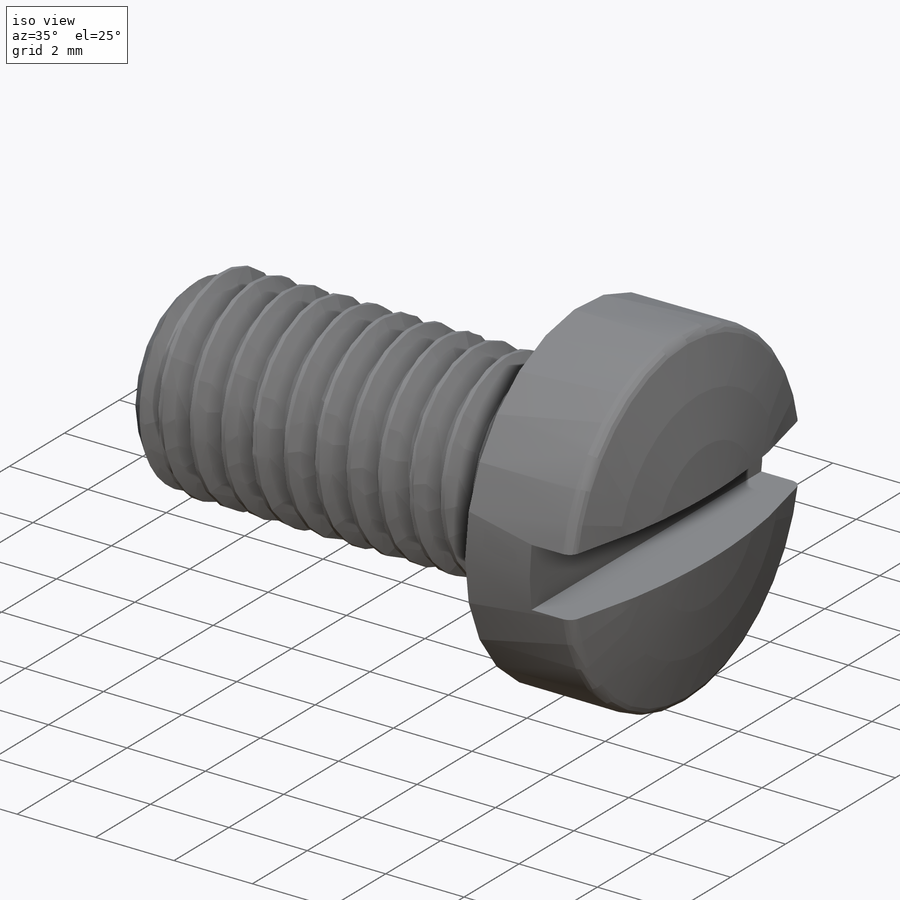
[diagram: iso view]
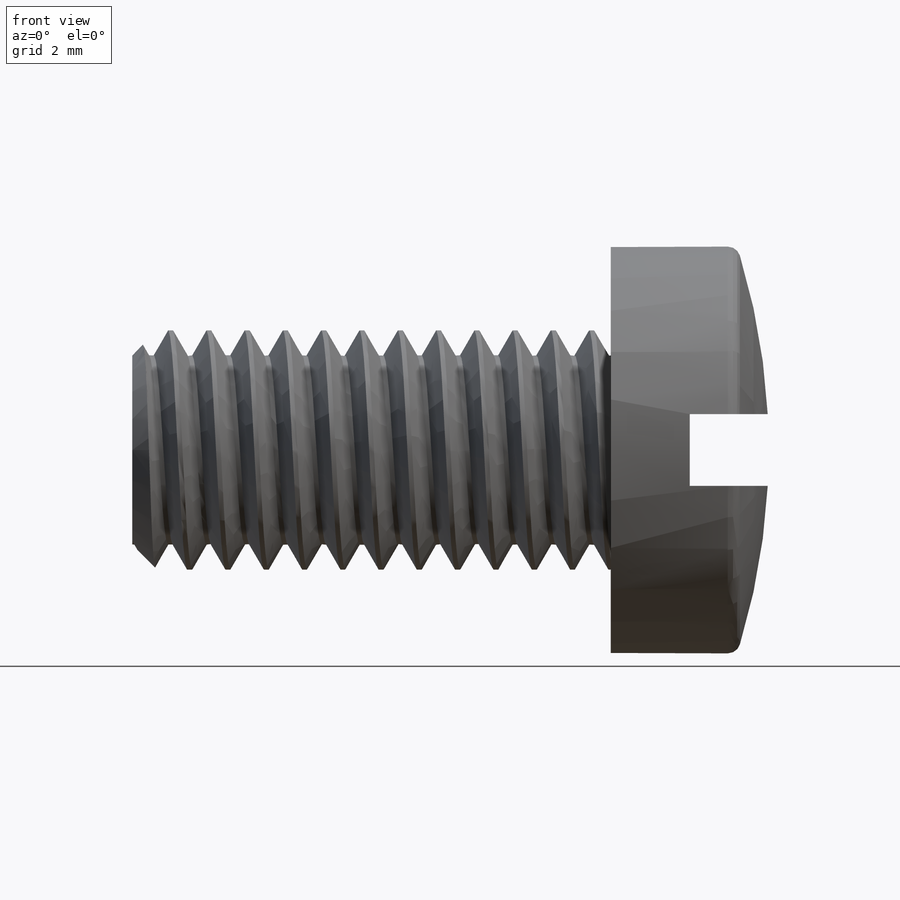
[diagram: front view]
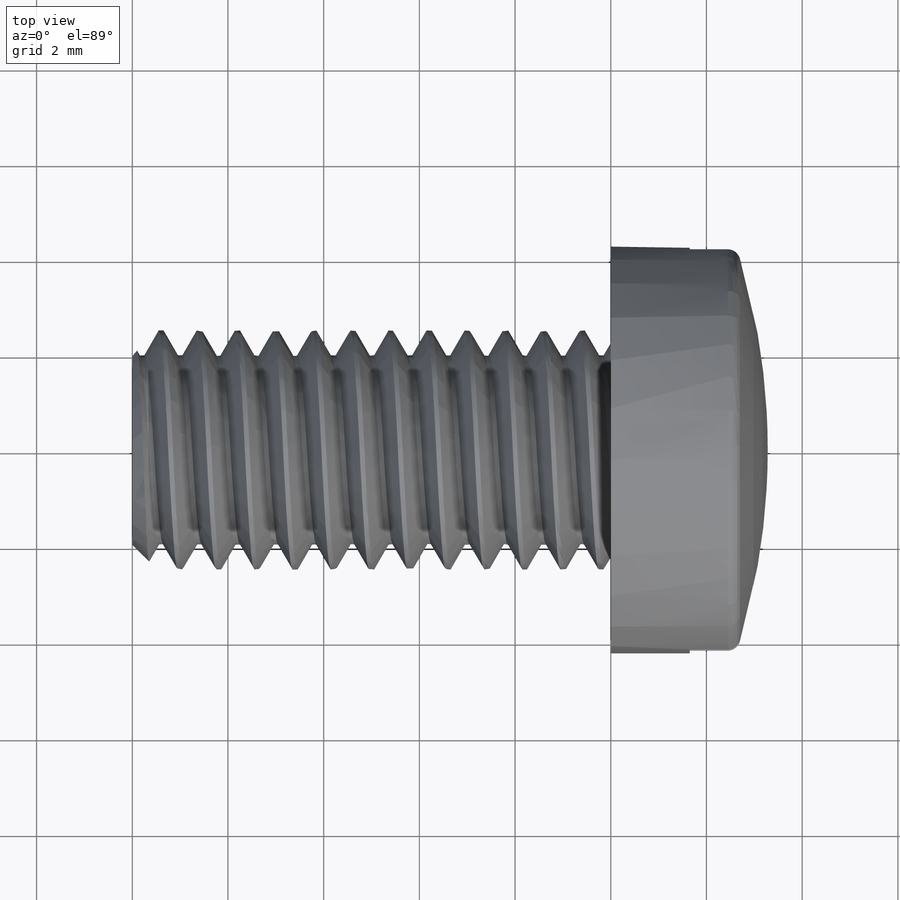
[diagram: top view]
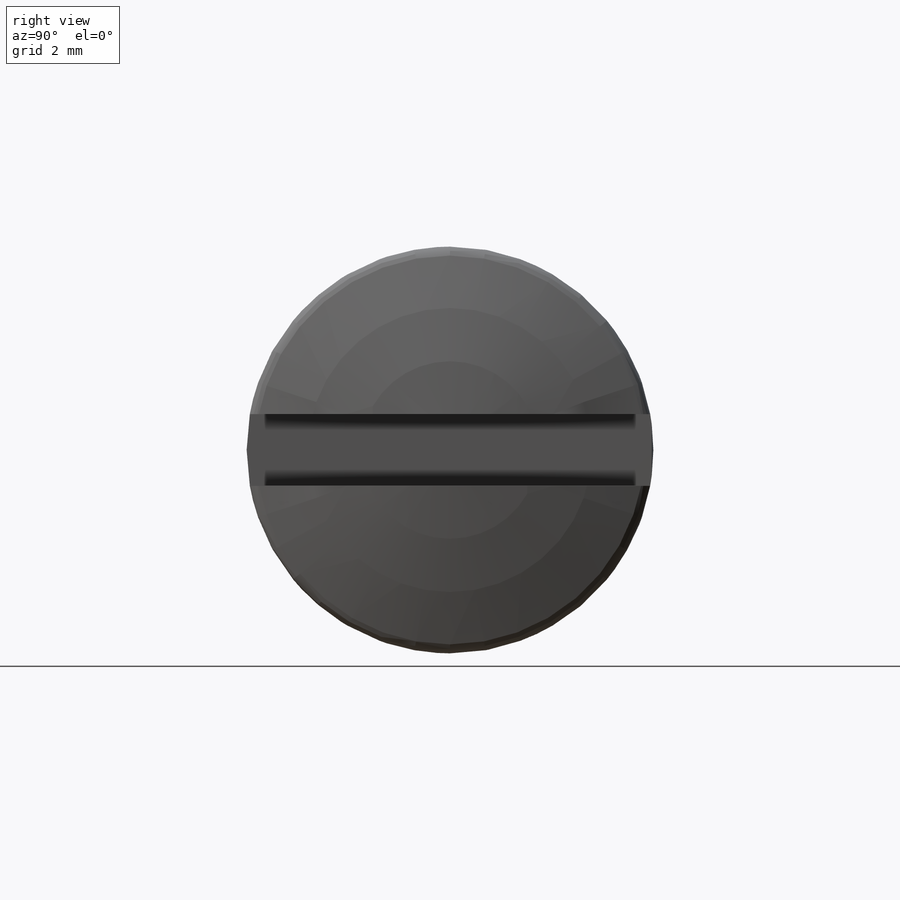
[diagram: right view]
SOLIDWORKS PART (.sldprt)
format: sldprt  version: not decoded by parser v0  size: 416,256 bytes
history: native  units: mm
features: sketch x13, helix x3, sweep x3, extrude x2, cut_extrude x2, material x1, cut_revolve x1 (+14 scaffold rows collapsed)
feature tree (39):
  scaffold x14  (default folders/planes/origin — collapsed)
  material  "Material <not specified>"
  sketch  "Sketch2"  dims[mm equiv=5.0mm]
  helix  "Helix/Spiral1"  Pitch=10mm screw length=10mm pitch=0.8mm
  sketch  "Sketch1"  dims[c1.D1=~15.504339mm c2.D1=30.0deg c2.D2=14.9549mm c3.D2=30.0deg c3.D3=0.1mm c3.D4=0.4mm c3.D5=2.5mm]
  sweep  "Sweep1"
  sketch  "Sketch3"
  extrude  "Extrude1"  Depth=10mm
  sketch  "Sketch6"  dims[D1=0.0mm]
  helix  "Helix/Spiral2"  Pitch=0.8mm
  sketch  "Sketch5"  dims[D1=0.0mm]
  sweep  "Sweep2"
  sketch  "Sketch8"  dims[D1=0.0mm]
  helix  "Helix/Spiral3"  Pitch=1.8mm
  sketch  "Sketch9"  dims[D1=0.0mm]
  sweep  "Sweep3"
  sketch  "Sketch4"  dims[D1=0.0mm]
  cut_extrude  "Cut-Extrude1"  [1 undecoded]
  sketch  "Sketch7"  dims[D1=8.0mm]
  cut_extrude  "Cut-Extrude2"  [1 undecoded]
  sketch  "Sketch10"  dims[head dia=8.5mm]
  extrude  "Extrude2"  Depth=3.3mm head height=3.3mm
  sketch  "Sketch12"  dims[D1=0.0mm slot depth=1.65mm slot width=1.5mm D6=1.0mm D7=5.0mm]
  sketch  "Sketch11"  dims[D4=0.264mm D1=2.64mm D2=1.0mm D3=1.0mm]
  cut_revolve  "Cut-Revolve1"  Angle=360deg
  sketch  "Sketch13"  dims[D1=3.3mm]
decode coverage: 18 of 24 modeling features carry decoded parameters
note: ~ marks probable driven/reference dimensions
note: 2 parameter values undecoded
note: suppression state not decoded; provenance and decode notes live in map.json
